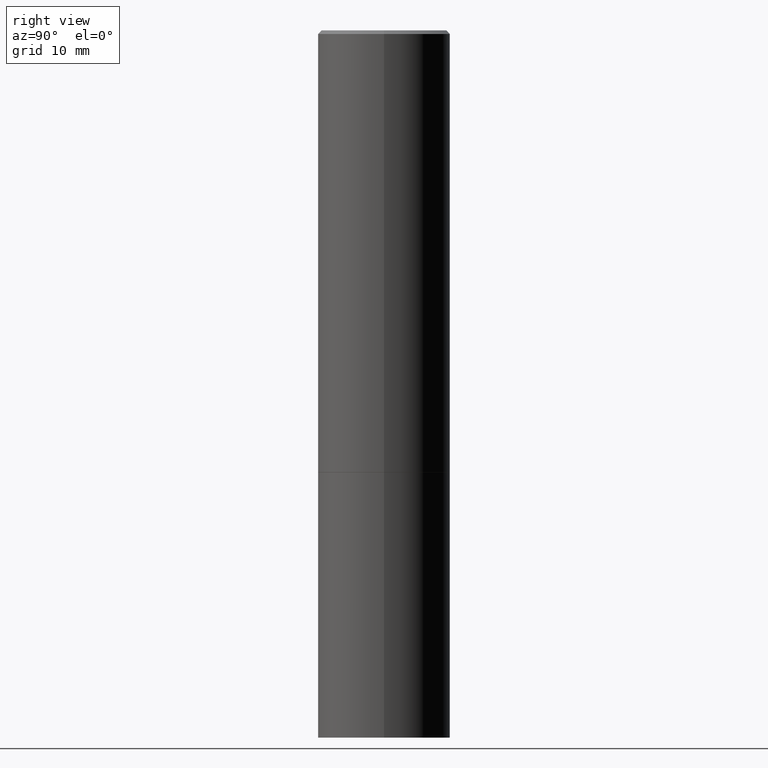
[diagram: clean part render]
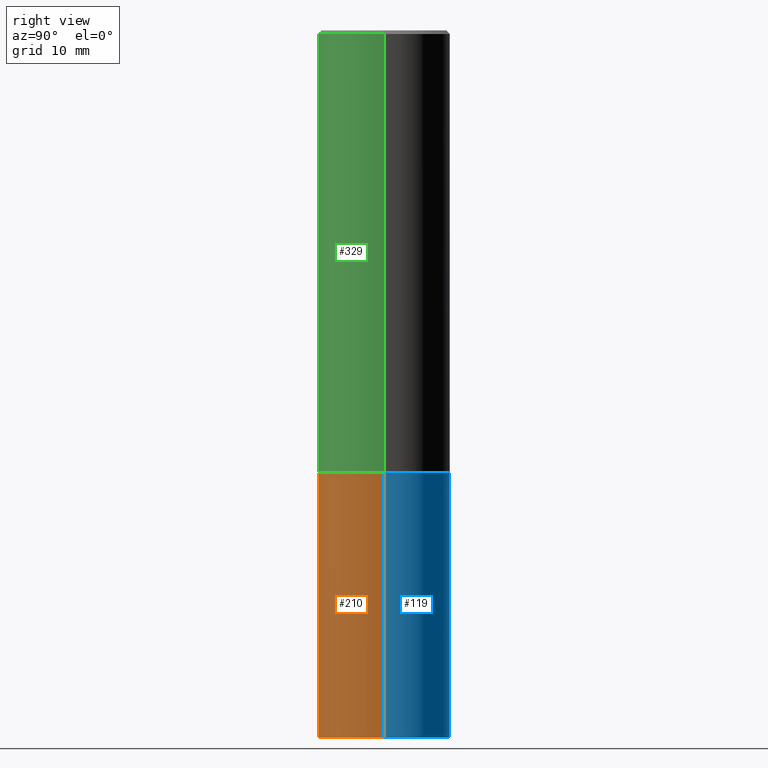
[diagram: same view with three faces highlighted in distinct colors, each labeled with its STEP entity id]
A machine part, right view with three faces highlighted in distinct colors.
Their STEP definitions:

[orange] entity #210 — the highlighted cylindrical surface (partial cylindrical patch) has radius 9.525 mm, axis along (-0, 0, 1).
#13 = ORIENTED_EDGE ( 'NONE', *, *, #313, .F. ) ;
#24 = CARTESIAN_POINT ( 'NONE',  ( -0.3750000000000001665, -1.134731435124022916E-14, -4.000000000000000000 ) ) ;
#26 = DIRECTION ( 'NONE',  ( -2.445468806185136597E-29, 3.491481338843145583E-15, 1.000000000000000000 ) ) ;
#28 = AXIS2_PLACEMENT_3D ( 'NONE', #197, #26, #352 ) ;
#37 = VECTOR ( 'NONE', #377, 39.37007874015748143 ) ;
#54 = CARTESIAN_POINT ( 'NONE',  ( -0.3750000000000000555, 2.664535259100376091E-15, -1.844600658845589598E-29 ) ) ;
#55 = VERTEX_POINT ( 'NONE', #70 ) ;
#59 = DIRECTION ( 'NONE',  ( 1.000000000000000000, -6.982962677686265922E-15, 4.876176775795935793E-29 ) ) ;
#67 = VERTEX_POINT ( 'NONE', #343 ) ;
#70 = CARTESIAN_POINT ( 'NONE',  ( 0.3750000000000001665, -1.653861210453690509E-14, -4.000000000000000000 ) ) ;
#73 = AXIS2_PLACEMENT_3D ( 'NONE', #113, #178, #357 ) ;
#83 = CARTESIAN_POINT ( 'NONE',  ( 0.3750000000000000555, -2.618611004132350016E-15, 1.828566290923476203E-29 ) ) ;
#107 = DIRECTION ( 'NONE',  ( -2.445468806185136877E-29, 3.491481338843145188E-15, 1.000000000000000000 ) ) ;
#113 = CARTESIAN_POINT ( 'NONE',  ( 9.781875224740546387E-29, -1.396592535537258233E-14, -4.000000000000000000 ) ) ;
#118 = CIRCLE ( 'NONE', #73, 0.3750000000000000555 ) ;
#127 = ORIENTED_EDGE ( 'NONE', *, *, #273, .T. ) ;
#130 = ORIENTED_EDGE ( 'NONE', *, *, #186, .F. ) ;
#167 = VERTEX_POINT ( 'NONE', #24 ) ;
#172 = FACE_OUTER_BOUND ( 'NONE', #370, .T. ) ;
#176 = LINE ( 'NONE', #83, #37 ) ;
#178 = DIRECTION ( 'NONE',  ( -2.445468806185136597E-29, 3.491481338843145583E-15, 1.000000000000000000 ) ) ;
#186 = EDGE_CURVE ( 'NONE', #167, #338, #264, .T. ) ;
#197 = CARTESIAN_POINT ( 'NONE',  ( 6.113672015462842613E-29, -8.728703347107864943E-15, -2.500000000000000000 ) ) ;
#210 = ADVANCED_FACE ( 'NONE', ( #172 ), #359, .T. ) ;
#238 = CIRCLE ( 'NONE', #28, 0.3750000000000000555 ) ;
#264 = LINE ( 'NONE', #54, #330 ) ;
#273 = EDGE_CURVE ( 'NONE', #55, #67, #176, .T. ) ;
#292 = DIRECTION ( 'NONE',  ( -2.445468806185136597E-29, 3.491481338843145583E-15, 1.000000000000000000 ) ) ;
#295 = CARTESIAN_POINT ( 'NONE',  ( 0.000000000000000000, 0.000000000000000000, 0.000000000000000000 ) ) ;
#302 = EDGE_CURVE ( 'NONE', #167, #55, #118, .T. ) ;
#313 = EDGE_CURVE ( 'NONE', #338, #67, #238, .T. ) ;
#330 = VECTOR ( 'NONE', #107, 39.37007874015748143 ) ;
#336 = AXIS2_PLACEMENT_3D ( 'NONE', #295, #292, #59 ) ;
#338 = VERTEX_POINT ( 'NONE', #388 ) ;
#343 = CARTESIAN_POINT ( 'NONE',  ( 0.3750000000000000555, -1.134731435124021338E-14, -2.500000000000000000 ) ) ;
#352 = DIRECTION ( 'NONE',  ( 1.000000000000000000, -6.982962677686264344E-15, 0.000000000000000000 ) ) ;
#357 = DIRECTION ( 'NONE',  ( 1.000000000000000000, -6.982962677686266711E-15, 0.000000000000000000 ) ) ;
#359 = CYLINDRICAL_SURFACE ( 'NONE', #336, 0.3750000000000000555 ) ;
#366 = ORIENTED_EDGE ( 'NONE', *, *, #302, .T. ) ;
#370 = EDGE_LOOP ( 'NONE', ( #130, #366, #127, #13 ) ) ;
#377 = DIRECTION ( 'NONE',  ( -2.445468806185136877E-29, 3.491481338843145188E-15, 1.000000000000000000 ) ) ;
#388 = CARTESIAN_POINT ( 'NONE',  ( -0.3750000000000000555, -8.682779092139847151E-15, -2.500000000000000000 ) ) ;

[blue] entity #119 — the highlighted cylindrical surface (partial cylindrical patch) has radius 9.525 mm, axis along (-0, 0, 1).
#1 = ORIENTED_EDGE ( 'NONE', *, *, #316, .T. ) ;
#4 = EDGE_CURVE ( 'NONE', #67, #338, #220, .T. ) ;
#7 = DIRECTION ( 'NONE',  ( -2.445468806185136597E-29, 3.491481338843145583E-15, 1.000000000000000000 ) ) ;
#15 = DIRECTION ( 'NONE',  ( 1.000000000000000000, -6.982962677686265922E-15, 4.876176775795935793E-29 ) ) ;
#24 = CARTESIAN_POINT ( 'NONE',  ( -0.3750000000000001665, -1.134731435124022916E-14, -4.000000000000000000 ) ) ;
#31 = DIRECTION ( 'NONE',  ( -2.445468806185136597E-29, 3.491481338843145583E-15, 1.000000000000000000 ) ) ;
#37 = VECTOR ( 'NONE', #377, 39.37007874015748143 ) ;
#41 = ORIENTED_EDGE ( 'NONE', *, *, #186, .T. ) ;
#53 = AXIS2_PLACEMENT_3D ( 'NONE', #288, #7, #15 ) ;
#54 = CARTESIAN_POINT ( 'NONE',  ( -0.3750000000000000555, 2.664535259100376091E-15, -1.844600658845589598E-29 ) ) ;
#55 = VERTEX_POINT ( 'NONE', #70 ) ;
#67 = VERTEX_POINT ( 'NONE', #343 ) ;
#70 = CARTESIAN_POINT ( 'NONE',  ( 0.3750000000000001665, -1.653861210453690509E-14, -4.000000000000000000 ) ) ;
#83 = CARTESIAN_POINT ( 'NONE',  ( 0.3750000000000000555, -2.618611004132350016E-15, 1.828566290923476203E-29 ) ) ;
#87 = AXIS2_PLACEMENT_3D ( 'NONE', #298, #31, #89 ) ;
#89 = DIRECTION ( 'NONE',  ( 1.000000000000000000, -6.982962677686266711E-15, 0.000000000000000000 ) ) ;
#103 = CARTESIAN_POINT ( 'NONE',  ( 6.113672015462842613E-29, -8.728703347107864943E-15, -2.500000000000000000 ) ) ;
#107 = DIRECTION ( 'NONE',  ( -2.445468806185136877E-29, 3.491481338843145188E-15, 1.000000000000000000 ) ) ;
#119 = ADVANCED_FACE ( 'NONE', ( #128 ), #277, .T. ) ;
#123 = ORIENTED_EDGE ( 'NONE', *, *, #273, .F. ) ;
#128 = FACE_OUTER_BOUND ( 'NONE', #322, .T. ) ;
#162 = ORIENTED_EDGE ( 'NONE', *, *, #4, .F. ) ;
#167 = VERTEX_POINT ( 'NONE', #24 ) ;
#171 = CIRCLE ( 'NONE', #87, 0.3750000000000000555 ) ;
#176 = LINE ( 'NONE', #83, #37 ) ;
#186 = EDGE_CURVE ( 'NONE', #167, #338, #264, .T. ) ;
#193 = AXIS2_PLACEMENT_3D ( 'NONE', #103, #257, #371 ) ;
#220 = CIRCLE ( 'NONE', #193, 0.3750000000000000555 ) ;
#257 = DIRECTION ( 'NONE',  ( -2.445468806185136597E-29, 3.491481338843145583E-15, 1.000000000000000000 ) ) ;
#264 = LINE ( 'NONE', #54, #330 ) ;
#273 = EDGE_CURVE ( 'NONE', #55, #67, #176, .T. ) ;
#277 = CYLINDRICAL_SURFACE ( 'NONE', #53, 0.3750000000000000555 ) ;
#288 = CARTESIAN_POINT ( 'NONE',  ( 0.000000000000000000, 0.000000000000000000, 0.000000000000000000 ) ) ;
#298 = CARTESIAN_POINT ( 'NONE',  ( 9.781875224740546387E-29, -1.396592535537258233E-14, -4.000000000000000000 ) ) ;
#316 = EDGE_CURVE ( 'NONE', #55, #167, #171, .T. ) ;
#322 = EDGE_LOOP ( 'NONE', ( #1, #41, #162, #123 ) ) ;
#330 = VECTOR ( 'NONE', #107, 39.37007874015748143 ) ;
#338 = VERTEX_POINT ( 'NONE', #388 ) ;
#343 = CARTESIAN_POINT ( 'NONE',  ( 0.3750000000000000555, -1.134731435124021338E-14, -2.500000000000000000 ) ) ;
#371 = DIRECTION ( 'NONE',  ( 1.000000000000000000, -6.982962677686264344E-15, 0.000000000000000000 ) ) ;
#377 = DIRECTION ( 'NONE',  ( -2.445468806185136877E-29, 3.491481338843145188E-15, 1.000000000000000000 ) ) ;
#388 = CARTESIAN_POINT ( 'NONE',  ( -0.3750000000000000555, -8.682779092139847151E-15, -2.500000000000000000 ) ) ;

[green] entity #329 — the highlighted cylindrical surface (partial cylindrical patch) has radius 9.525 mm, axis along (-0, 0, 1).
#2 = FACE_OUTER_BOUND ( 'NONE', #138, .T. ) ;
#9 = LINE ( 'NONE', #318, #341 ) ;
#10 = AXIS2_PLACEMENT_3D ( 'NONE', #95, #215, #189 ) ;
#22 = EDGE_CURVE ( 'NONE', #365, #192, #9, .T. ) ;
#27 = AXIS2_PLACEMENT_3D ( 'NONE', #319, #100, #218 ) ;
#47 = EDGE_CURVE ( 'NONE', #121, #120, #345, .T. ) ;
#74 = CARTESIAN_POINT ( 'NONE',  ( 0.3749999999999998335, -2.618611004132348439E-15, 1.828566290923475082E-29 ) ) ;
#95 = CARTESIAN_POINT ( 'NONE',  ( 6.111226546656659252E-29, -8.725211865769023513E-15, -2.499000000000000998 ) ) ;
#97 = EDGE_CURVE ( 'NONE', #192, #120, #147, .T. ) ;
#100 = DIRECTION ( 'NONE',  ( -2.445468806185136597E-29, 3.491481338843145583E-15, 1.000000000000000000 ) ) ;
#106 = AXIS2_PLACEMENT_3D ( 'NONE', #306, #274, #270 ) ;
#120 = VERTEX_POINT ( 'NONE', #260 ) ;
#121 = VERTEX_POINT ( 'NONE', #214 ) ;
#129 = ORIENTED_EDGE ( 'NONE', *, *, #22, .F. ) ;
#138 = EDGE_LOOP ( 'NONE', ( #129, #276, #363, #278 ) ) ;
#142 = CARTESIAN_POINT ( 'NONE',  ( -0.3749999999999996669, 2.548781377355484352E-15, -0.02000000000000010103 ) ) ;
#147 = CIRCLE ( 'NONE', #27, 0.3749999999999996669 ) ;
#152 = EDGE_CURVE ( 'NONE', #365, #121, #360, .T. ) ;
#155 = CYLINDRICAL_SURFACE ( 'NONE', #106, 0.3749999999999998335 ) ;
#170 = VECTOR ( 'NONE', #191, 39.37007874015748143 ) ;
#189 = DIRECTION ( 'NONE',  ( 1.000000000000000000, -6.982962677686264344E-15, 0.000000000000000000 ) ) ;
#191 = DIRECTION ( 'NONE',  ( -2.445468806185136877E-29, 3.491481338843145188E-15, 1.000000000000000000 ) ) ;
#192 = VERTEX_POINT ( 'NONE', #142 ) ;
#214 = CARTESIAN_POINT ( 'NONE',  ( 0.3750000000000000555, -1.134382286990137353E-14, -2.499000000000000998 ) ) ;
#215 = DIRECTION ( 'NONE',  ( -2.445468806185136597E-29, 3.491481338843145583E-15, 1.000000000000000000 ) ) ;
#218 = DIRECTION ( 'NONE',  ( 1.000000000000000000, -6.982962677686266711E-15, 0.000000000000000000 ) ) ;
#239 = CARTESIAN_POINT ( 'NONE',  ( -0.3749999999999999445, -1.732985487172566723E-15, -2.499000000000000998 ) ) ;
#260 = CARTESIAN_POINT ( 'NONE',  ( 0.3749999999999996669, -2.642516375941185662E-15, -0.02000000000000010103 ) ) ;
#270 = DIRECTION ( 'NONE',  ( 1.000000000000000000, -6.982962677686265922E-15, 4.876176775795935793E-29 ) ) ;
#274 = DIRECTION ( 'NONE',  ( -2.445468806185136597E-29, 3.491481338843145583E-15, 1.000000000000000000 ) ) ;
#276 = ORIENTED_EDGE ( 'NONE', *, *, #152, .T. ) ;
#278 = ORIENTED_EDGE ( 'NONE', *, *, #97, .F. ) ;
#306 = CARTESIAN_POINT ( 'NONE',  ( 0.000000000000000000, 0.000000000000000000, 0.000000000000000000 ) ) ;
#318 = CARTESIAN_POINT ( 'NONE',  ( -0.3749999999999998335, 2.664535259100374514E-15, -1.844600658845588757E-29 ) ) ;
#319 = CARTESIAN_POINT ( 'NONE',  ( 4.890937612370298557E-31, -6.982962677686327354E-17, -0.02000000000000010103 ) ) ;
#329 = ADVANCED_FACE ( 'NONE', ( #2 ), #155, .T. ) ;
#341 = VECTOR ( 'NONE', #369, 39.37007874015748143 ) ;
#345 = LINE ( 'NONE', #74, #170 ) ;
#360 = CIRCLE ( 'NONE', #10, 0.3750000000000000555 ) ;
#363 = ORIENTED_EDGE ( 'NONE', *, *, #47, .T. ) ;
#365 = VERTEX_POINT ( 'NONE', #239 ) ;
#369 = DIRECTION ( 'NONE',  ( -2.445468806185136877E-29, 3.491481338843145188E-15, 1.000000000000000000 ) ) ;